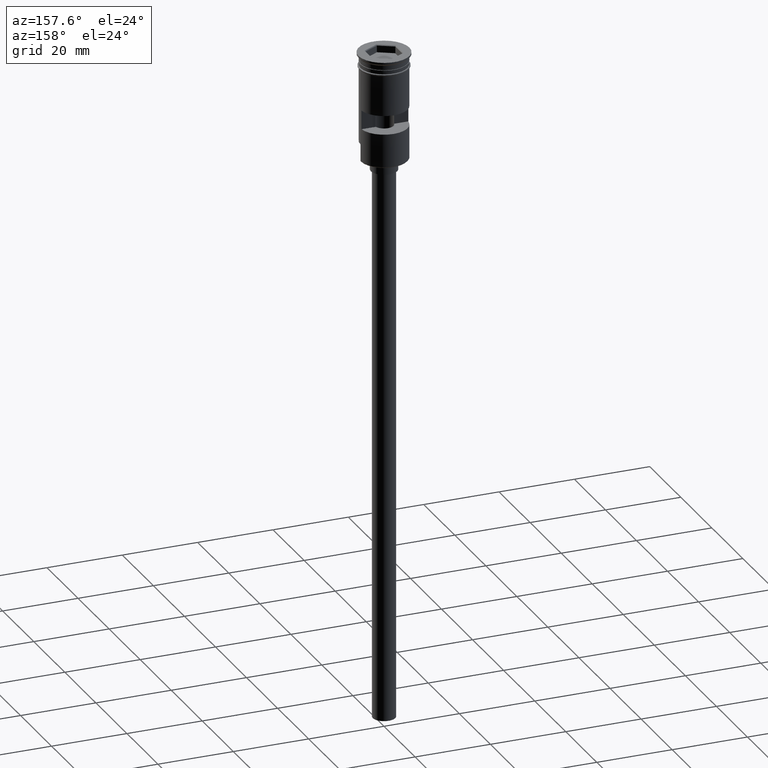
[diagram: clean part render]
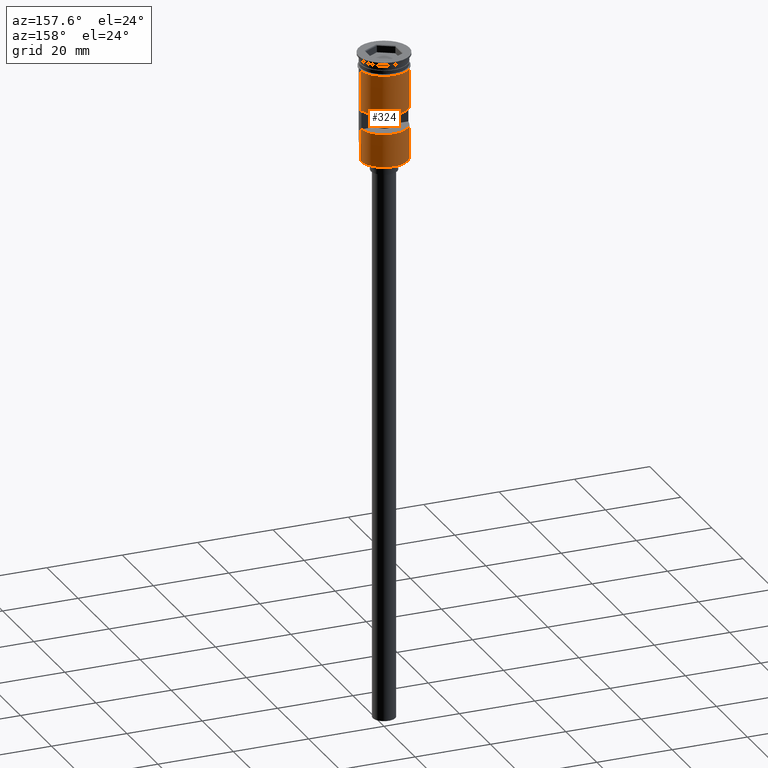
[diagram: same view with one face highlighted and labeled with its STEP entity id]
A machine part, auxiliary view. The second image highlights one B-rep face of the part: STEP entity #324.
In plain terms, the highlighted cylindrical surface (edge-blend (fillet) strip) has radius 6.25 mm, axis along (-0, -0, 1).
Its self-contained STEP definition (entity closure, byte-faithful):
#9 = CARTESIAN_POINT ( 'NONE',  ( 6.249999999999997335, 7.654042494670953662E-16, -23.80000000000000782 ) ) ;
#23 = CARTESIAN_POINT ( 'NONE',  ( -6.221133337262590324, 0.5999999999999999778, -14.49999999999999822 ) ) ;
#53 = VERTEX_POINT ( 'NONE', #769 ) ;
#56 = VERTEX_POINT ( 'NONE', #916 ) ;
#57 = EDGE_CURVE ( 'NONE', #795, #735, #924, .T. ) ;
#60 = DIRECTION ( 'NONE',  ( -1.000000000000000000, 0.000000000000000000, 0.000000000000000000 ) ) ;
#76 = VERTEX_POINT ( 'NONE', #1139 ) ;
#88 = CARTESIAN_POINT ( 'NONE',  ( 6.250000000000000000, 0.000000000000000000, -3.799999999999998490 ) ) ;
#91 = ORIENTED_EDGE ( 'NONE', *, *, #1028, .F. ) ;
#92 = CARTESIAN_POINT ( 'NONE',  ( 0.000000000000000000, 0.000000000000000000, -19.50000000000000355 ) ) ;
#153 = VERTEX_POINT ( 'NONE', #88 ) ;
#158 = LINE ( 'NONE', #647, #285 ) ;
#180 = VERTEX_POINT ( 'NONE', #811 ) ;
#183 = CARTESIAN_POINT ( 'NONE',  ( -6.249999999999995559, 0.000000000000000000, -28.29999999999999716 ) ) ;
#188 = EDGE_LOOP ( 'NONE', ( #586, #753, #1263, #91 ) ) ;
#218 = DIRECTION ( 'NONE',  ( -0.000000000000000000, -0.000000000000000000, 1.000000000000000000 ) ) ;
#243 = DIRECTION ( 'NONE',  ( 1.000000000000000000, 0.000000000000000000, 0.000000000000000000 ) ) ;
#263 = LINE ( 'NONE', #994, #1401 ) ;
#285 = VECTOR ( 'NONE', #658, 1000.000000000000000 ) ;
#323 = CARTESIAN_POINT ( 'NONE',  ( 0.000000000000000000, 0.000000000000000000, -28.29999999999999716 ) ) ;
#324 = ADVANCED_FACE ( 'NONE', ( #842, #970 ), #475, .T. ) ;
#337 = LINE ( 'NONE', #354, #542 ) ;
#340 = VECTOR ( 'NONE', #883, 1000.000000000000000 ) ;
#354 = CARTESIAN_POINT ( 'NONE',  ( -6.249999999999997335, 7.654042494670954648E-16, 0.000000000000000000 ) ) ;
#393 = VECTOR ( 'NONE', #775, 1000.000000000000000 ) ;
#423 = ORIENTED_EDGE ( 'NONE', *, *, #694, .F. ) ;
#427 = DIRECTION ( 'NONE',  ( 0.000000000000000000, 0.000000000000000000, 1.000000000000000000 ) ) ;
#446 = AXIS2_PLACEMENT_3D ( 'NONE', #1111, #1339, #474 ) ;
#453 = DIRECTION ( 'NONE',  ( -1.000000000000000000, 0.000000000000000000, 0.000000000000000000 ) ) ;
#474 = DIRECTION ( 'NONE',  ( 1.000000000000000000, 0.000000000000000000, 0.000000000000000000 ) ) ;
#475 = CYLINDRICAL_SURFACE ( 'NONE', #1116, 6.249999999999997335 ) ;
#479 = CARTESIAN_POINT ( 'NONE',  ( 6.249999999999995559, 7.654042494670950704E-16, -28.50000000000000000 ) ) ;
#542 = VECTOR ( 'NONE', #838, 1000.000000000000000 ) ;
#573 = ORIENTED_EDGE ( 'NONE', *, *, #819, .T. ) ;
#577 = VERTEX_POINT ( 'NONE', #183 ) ;
#586 = ORIENTED_EDGE ( 'NONE', *, *, #1251, .F. ) ;
#614 = CARTESIAN_POINT ( 'NONE',  ( -6.249999999999995559, 0.000000000000000000, -23.80000000000000782 ) ) ;
#621 = ORIENTED_EDGE ( 'NONE', *, *, #1327, .F. ) ;
#647 = CARTESIAN_POINT ( 'NONE',  ( -6.221133337262590324, 0.5999999999999999778, 0.000000000000000000 ) ) ;
#651 = AXIS2_PLACEMENT_3D ( 'NONE', #92, #1557, #60 ) ;
#658 = DIRECTION ( 'NONE',  ( -0.000000000000000000, -0.000000000000000000, 1.000000000000000000 ) ) ;
#661 = DIRECTION ( 'NONE',  ( 0.000000000000000000, -1.000000000000000000, 2.775557561562892337E-16 ) ) ;
#694 = EDGE_CURVE ( 'NONE', #76, #1277, #1326, .T. ) ;
#710 = CARTESIAN_POINT ( 'NONE',  ( 6.221133337262590324, 0.5999999999999999778, -14.49999999999999822 ) ) ;
#715 = ORIENTED_EDGE ( 'NONE', *, *, #1155, .T. ) ;
#723 = EDGE_CURVE ( 'NONE', #153, #53, #1068, .T. ) ;
#726 = CIRCLE ( 'NONE', #651, 6.249999999999997335 ) ;
#735 = VERTEX_POINT ( 'NONE', #710 ) ;
#753 = ORIENTED_EDGE ( 'NONE', *, *, #57, .F. ) ;
#769 = CARTESIAN_POINT ( 'NONE',  ( -6.250000000000000000, 7.654042494670958593E-16, -3.799999999999998490 ) ) ;
#775 = DIRECTION ( 'NONE',  ( -0.000000000000000000, -0.000000000000000000, 1.000000000000000000 ) ) ;
#795 = VERTEX_POINT ( 'NONE', #23 ) ;
#811 = CARTESIAN_POINT ( 'NONE',  ( 6.221133337262590324, 0.5999999999999999778, -19.50000000000000355 ) ) ;
#819 = EDGE_CURVE ( 'NONE', #577, #1572, #1536, .T. ) ;
#828 = VECTOR ( 'NONE', #218, 1000.000000000000000 ) ;
#838 = DIRECTION ( 'NONE',  ( -0.000000000000000000, -0.000000000000000000, 1.000000000000000000 ) ) ;
#842 = FACE_BOUND ( 'NONE', #188, .T. ) ;
#854 = DIRECTION ( 'NONE',  ( -0.000000000000000000, -0.000000000000000000, 1.000000000000000000 ) ) ;
#883 = DIRECTION ( 'NONE',  ( -0.000000000000000000, -0.000000000000000000, 1.000000000000000000 ) ) ;
#891 = CARTESIAN_POINT ( 'NONE',  ( 6.249999999999997335, 0.000000000000000000, 0.000000000000000000 ) ) ;
#914 = EDGE_CURVE ( 'NONE', #56, #795, #158, .T. ) ;
#916 = CARTESIAN_POINT ( 'NONE',  ( -6.221133337262590324, 0.5999999999999999778, -19.50000000000000355 ) ) ;
#924 = CIRCLE ( 'NONE', #1001, 6.249999999999997335 ) ;
#963 = EDGE_LOOP ( 'NONE', ( #573, #715, #1024, #621, #423, #1566 ) ) ;
#970 = FACE_OUTER_BOUND ( 'NONE', #963, .T. ) ;
#994 = CARTESIAN_POINT ( 'NONE',  ( 6.221133337262590324, 0.5999999999999999778, 0.000000000000000000 ) ) ;
#1001 = AXIS2_PLACEMENT_3D ( 'NONE', #1412, #1049, #661 ) ;
#1024 = ORIENTED_EDGE ( 'NONE', *, *, #723, .F. ) ;
#1028 = EDGE_CURVE ( 'NONE', #180, #56, #726, .T. ) ;
#1049 = DIRECTION ( 'NONE',  ( -0.000000000000000000, -3.070307037127093647E-16, -1.000000000000000000 ) ) ;
#1068 = CIRCLE ( 'NONE', #446, 6.250000000000000000 ) ;
#1082 = EDGE_CURVE ( 'NONE', #76, #577, #1504, .T. ) ;
#1111 = CARTESIAN_POINT ( 'NONE',  ( 0.000000000000000000, 0.000000000000000000, -3.799999999999998490 ) ) ;
#1116 = AXIS2_PLACEMENT_3D ( 'NONE', #1475, #854, #243 ) ;
#1128 = DIRECTION ( 'NONE',  ( 0.000000000000000000, 0.000000000000000000, -1.000000000000000000 ) ) ;
#1139 = CARTESIAN_POINT ( 'NONE',  ( 6.249999999999995559, 7.654042494670950704E-16, -28.29999999999999716 ) ) ;
#1155 = EDGE_CURVE ( 'NONE', #1572, #53, #337, .T. ) ;
#1251 = EDGE_CURVE ( 'NONE', #735, #180, #263, .T. ) ;
#1263 = ORIENTED_EDGE ( 'NONE', *, *, #914, .F. ) ;
#1277 = VERTEX_POINT ( 'NONE', #9 ) ;
#1326 = LINE ( 'NONE', #479, #828 ) ;
#1327 = EDGE_CURVE ( 'NONE', #1277, #153, #1390, .T. ) ;
#1339 = DIRECTION ( 'NONE',  ( -0.000000000000000000, -0.000000000000000000, 1.000000000000000000 ) ) ;
#1390 = LINE ( 'NONE', #891, #340 ) ;
#1401 = VECTOR ( 'NONE', #1128, 1000.000000000000000 ) ;
#1412 = CARTESIAN_POINT ( 'NONE',  ( 0.000000000000000000, 0.000000000000000000, -14.49999999999999822 ) ) ;
#1475 = CARTESIAN_POINT ( 'NONE',  ( 0.000000000000000000, 0.000000000000000000, 0.000000000000000000 ) ) ;
#1504 = CIRCLE ( 'NONE', #1561, 6.249999999999997335 ) ;
#1524 = CARTESIAN_POINT ( 'NONE',  ( -6.249999999999995559, 0.000000000000000000, -28.50000000000000000 ) ) ;
#1536 = LINE ( 'NONE', #1524, #393 ) ;
#1557 = DIRECTION ( 'NONE',  ( 0.000000000000000000, 0.000000000000000000, 1.000000000000000000 ) ) ;
#1561 = AXIS2_PLACEMENT_3D ( 'NONE', #323, #427, #453 ) ;
#1566 = ORIENTED_EDGE ( 'NONE', *, *, #1082, .T. ) ;
#1572 = VERTEX_POINT ( 'NONE', #614 ) ;